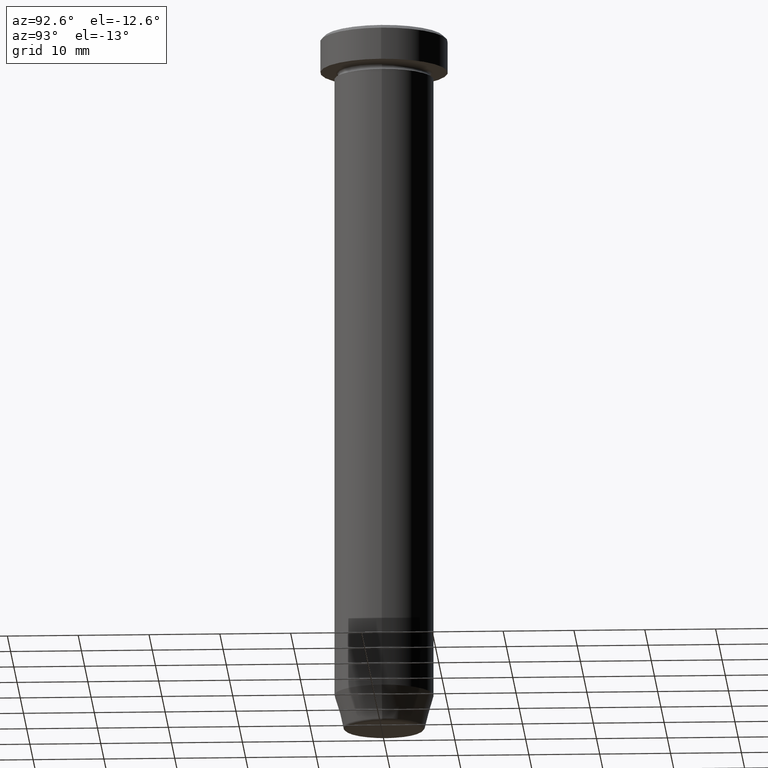
[diagram: clean part render]
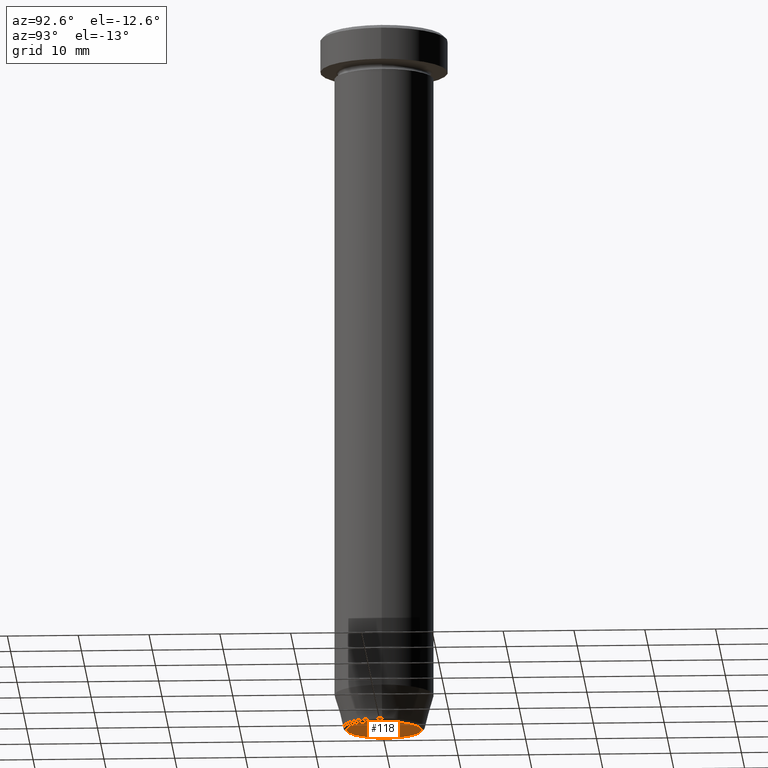
[diagram: same view with one face highlighted and labeled with its STEP entity id]
A machine part, auxiliary view. The second image highlights one B-rep face of the part: STEP entity #118.
In plain terms, the highlighted planar face has unit normal (0, -0, 1).
Its self-contained STEP definition (entity closure, byte-faithful):
#21 = DIRECTION ( 'NONE',  ( 1.000000000000000000, 0.000000000000000000, 0.000000000000000000 ) ) ;
#29 = EDGE_CURVE ( 'NONE', #280, #372, #197, .T. ) ;
#32 = CARTESIAN_POINT ( 'NONE',  ( -5.276590543854903004, 6.757689212787765916E-16, -100.0000000000000000 ) ) ;
#61 = AXIS2_PLACEMENT_3D ( 'NONE', #300, #106, #108 ) ;
#76 = CARTESIAN_POINT ( 'NONE',  ( 0.000000000000000000, 0.000000000000000000, -100.0000000000000000 ) ) ;
#106 = DIRECTION ( 'NONE',  ( 0.000000000000000000, 0.000000000000000000, -1.000000000000000000 ) ) ;
#108 = DIRECTION ( 'NONE',  ( 1.000000000000000000, 0.000000000000000000, 0.000000000000000000 ) ) ;
#118 = ADVANCED_FACE ( 'NONE', ( #360 ), #572, .F. ) ;
#131 = CARTESIAN_POINT ( 'NONE',  ( 5.276590543854903004, 0.000000000000000000, -100.0000000000000000 ) ) ;
#183 = EDGE_LOOP ( 'NONE', ( #376, #448 ) ) ;
#197 = CIRCLE ( 'NONE', #61, 5.276590543854903004 ) ;
#263 = DIRECTION ( 'NONE',  ( 1.000000000000000000, 0.000000000000000000, 0.000000000000000000 ) ) ;
#280 = VERTEX_POINT ( 'NONE', #32 ) ;
#300 = CARTESIAN_POINT ( 'NONE',  ( 0.000000000000000000, 0.000000000000000000, -100.0000000000000000 ) ) ;
#360 = FACE_OUTER_BOUND ( 'NONE', #183, .T. ) ;
#372 = VERTEX_POINT ( 'NONE', #131 ) ;
#376 = ORIENTED_EDGE ( 'NONE', *, *, #404, .T. ) ;
#404 = EDGE_CURVE ( 'NONE', #372, #280, #575, .T. ) ;
#448 = ORIENTED_EDGE ( 'NONE', *, *, #29, .T. ) ;
#468 = AXIS2_PLACEMENT_3D ( 'NONE', #494, #569, #21 ) ;
#494 = CARTESIAN_POINT ( 'NONE',  ( 0.000000000000000000, 6.123233995736766085E-15, -100.0000000000000000 ) ) ;
#569 = DIRECTION ( 'NONE',  ( 0.000000000000000000, -0.000000000000000000, 1.000000000000000000 ) ) ;
#571 = DIRECTION ( 'NONE',  ( 0.000000000000000000, 0.000000000000000000, -1.000000000000000000 ) ) ;
#572 = PLANE ( 'NONE',  #468 ) ;
#575 = CIRCLE ( 'NONE', #589, 5.276590543854903004 ) ;
#589 = AXIS2_PLACEMENT_3D ( 'NONE', #76, #571, #263 ) ;